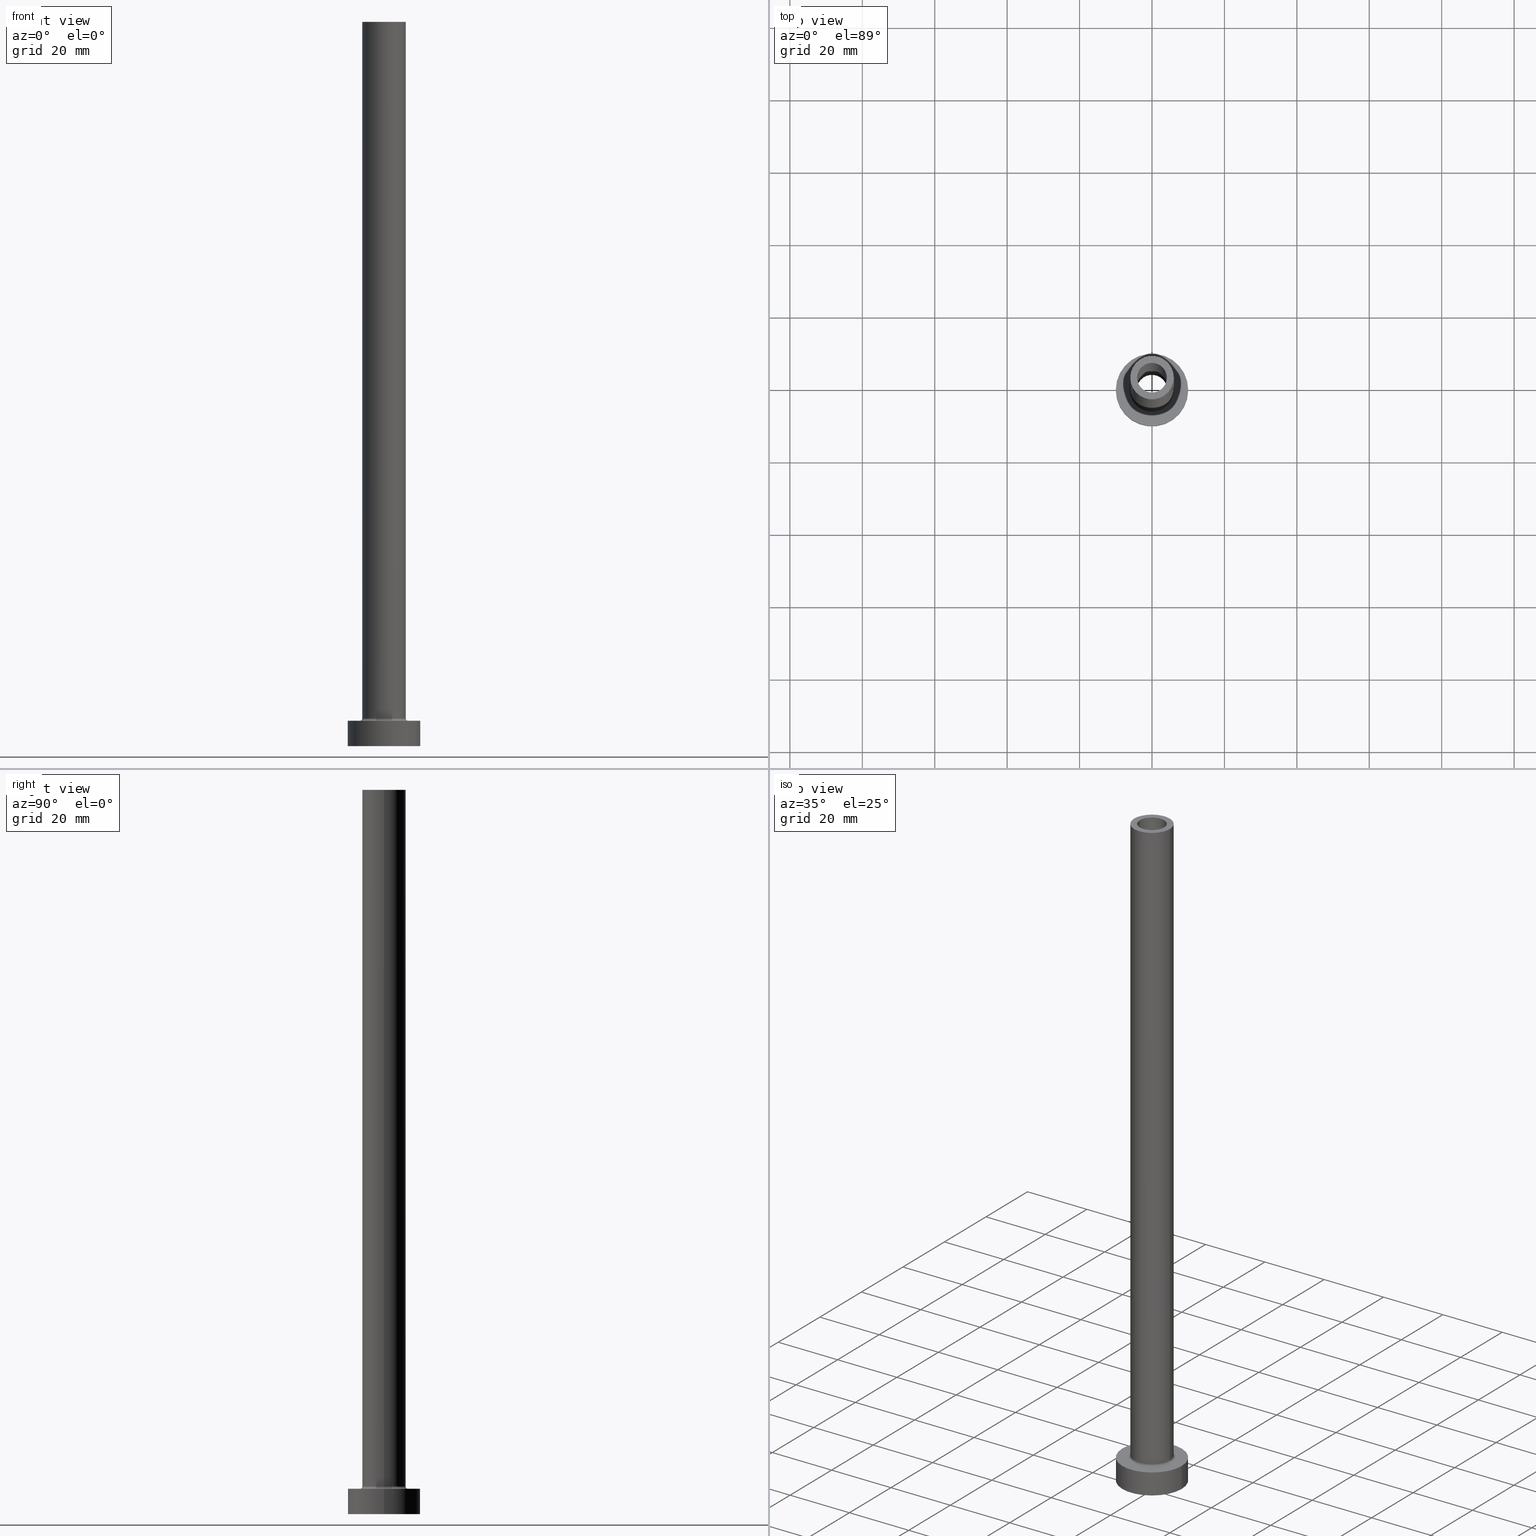
[diagram: canonical four-view strip — front | top / right | iso, engineering-drawing reading convention]
A machine part, canonical four-view strip (front | top / right | iso — engineering-drawing reading convention). The complete STEP part file that produces these views, byte-faithful:
ISO-10303-21;
HEADER;
FILE_DESCRIPTION (( 'STEP AP203' ),
    '1' );
FILE_NAME ('db76.STEP',
    '2023-02-13T07:45:26',
    ( '' ),
    ( '' ),
    'SwSTEP 2.0',
    'SolidWorks 2019',
    '' );
FILE_SCHEMA (( 'CONFIG_CONTROL_DESIGN' ));
ENDSEC;

DATA;
#1 = DIRECTION ( 'NONE',  ( -0.000000000000000000, -0.000000000000000000, -1.000000000000000000 ) ) ;
#2 = DIRECTION ( 'NONE',  ( 1.000000000000000000, 0.000000000000000000, 0.000000000000000000 ) ) ;
#3 = VERTEX_POINT ( 'NONE', #303 ) ;
#4 = CIRCLE ( 'NONE', #53, 10.00000000000000000 ) ;
#5 = CARTESIAN_POINT ( 'NONE',  ( 0.000000000000000000, 0.000000000000000000, 7.000000000000000000 ) ) ;
#6 = CC_DESIGN_PERSON_AND_ORGANIZATION_ASSIGNMENT ( #117, #230, ( #453 ) ) ;
#7 = ORIENTED_EDGE ( 'NONE', *, *, #271, .F. ) ;
#8 = DIRECTION ( 'NONE',  ( 0.000000000000000000, 0.000000000000000000, 1.000000000000000000 ) ) ;
#9 = PERSON_AND_ORGANIZATION ( #415, #237 ) ;
#10 = EDGE_LOOP ( 'NONE', ( #16, #228, #18, #420 ) ) ;
#11 = DIRECTION ( 'NONE',  ( 0.000000000000000000, 0.000000000000000000, 1.000000000000000000 ) ) ;
#12 = ORIENTED_EDGE ( 'NONE', *, *, #333, .F. ) ;
#13 = ADVANCED_BREP_SHAPE_REPRESENTATION ( 'db76', ( #59, #292 ), #231 ) ;
#14 = LOCAL_TIME ( 8, 45, 26.00000000000000000, #174 ) ;
#15 = VERTEX_POINT ( 'NONE', #106 ) ;
#16 = ORIENTED_EDGE ( 'NONE', *, *, #302, .F. ) ;
#17 = CALENDAR_DATE ( 2023, 13, 2 ) ;
#18 = ORIENTED_EDGE ( 'NONE', *, *, #45, .T. ) ;
#19 = EDGE_CURVE ( 'NONE', #15, #83, #216, .T. ) ;
#20 = DIRECTION ( 'NONE',  ( 1.000000000000000000, 0.000000000000000000, 0.000000000000000000 ) ) ;
#21 = AXIS2_PLACEMENT_3D ( 'NONE', #459, #389, #285 ) ;
#22 = DIRECTION ( 'NONE',  ( 1.000000000000000000, 0.000000000000000000, 0.000000000000000000 ) ) ;
#23 = CIRCLE ( 'NONE', #276, 4.250000000000000000 ) ;
#24 = CARTESIAN_POINT ( 'NONE',  ( 0.000000000000000000, 0.000000000000000000, 200.0000000000000000 ) ) ;
#25 = ORIENTED_EDGE ( 'NONE', *, *, #195, .T. ) ;
#26 = CARTESIAN_POINT ( 'NONE',  ( 6.700000000000001066, 0.000000000000000000, 7.700000000000012612 ) ) ;
#27 = CARTESIAN_POINT ( 'NONE',  ( 0.000000000000000000, 0.000000000000000000, 7.700000000000012612 ) ) ;
#28 = AXIS2_PLACEMENT_3D ( 'NONE', #5, #394, #149 ) ;
#29 = CARTESIAN_POINT ( 'NONE',  ( 0.000000000000000000, 0.000000000000000000, 0.000000000000000000 ) ) ;
#30 = APPROVAL_STATUS ( 'not_yet_approved' ) ;
#31 = DIRECTION ( 'NONE',  ( 0.000000000000000000, 0.000000000000000000, 1.000000000000000000 ) ) ;
#32 = DIRECTION ( 'NONE',  ( 0.000000000000000000, 0.000000000000000000, 1.000000000000000000 ) ) ;
#33 = AXIS2_PLACEMENT_3D ( 'NONE', #432, #8, #154 ) ;
#34 = FACE_OUTER_BOUND ( 'NONE', #252, .T. ) ;
#35 = DIRECTION ( 'NONE',  ( -0.000000000000000000, -0.000000000000000000, -1.000000000000000000 ) ) ;
#36 = DIRECTION ( 'NONE',  ( -1.000000000000000000, 0.000000000000000000, 0.000000000000000000 ) ) ;
#37 = AXIS2_PLACEMENT_3D ( 'NONE', #88, #376, #193 ) ;
#38 =( LENGTH_UNIT ( ) NAMED_UNIT ( * ) SI_UNIT ( .MILLI., .METRE. ) );
#39 = EDGE_CURVE ( 'NONE', #15, #114, #144, .T. ) ;
#40 = ORIENTED_EDGE ( 'NONE', *, *, #45, .F. ) ;
#41 = DIRECTION ( 'NONE',  ( -0.000000000000000000, -0.000000000000000000, -1.000000000000000000 ) ) ;
#42 = CARTESIAN_POINT ( 'NONE',  ( 0.000000000000000000, 0.000000000000000000, 0.000000000000000000 ) ) ;
#43 = DATE_AND_TIME ( #17, #148 ) ;
#44 = ORIENTED_EDGE ( 'NONE', *, *, #324, .F. ) ;
#45 = EDGE_CURVE ( 'NONE', #375, #48, #86, .T. ) ;
#46 = EDGE_CURVE ( 'NONE', #219, #400, #384, .T. ) ;
#47 = PERSON_AND_ORGANIZATION ( #415, #237 ) ;
#48 = VERTEX_POINT ( 'NONE', #191 ) ;
#49 = AXIS2_PLACEMENT_3D ( 'NONE', #89, #346, #20 ) ;
#50 = AXIS2_PLACEMENT_3D ( 'NONE', #27, #278, #279 ) ;
#51 = PERSON_AND_ORGANIZATION_ROLE ( 'design_supplier' ) ;
#52 = EDGE_CURVE ( 'NONE', #320, #199, #170, .T. ) ;
#53 = AXIS2_PLACEMENT_3D ( 'NONE', #42, #355, #443 ) ;
#54 = EDGE_LOOP ( 'NONE', ( #409, #370 ) ) ;
#55 = CARTESIAN_POINT ( 'NONE',  ( 4.250000000000000000, 5.204748896376250699E-16, 167.0208152801713197 ) ) ;
#56 = AXIS2_PLACEMENT_3D ( 'NONE', #425, #95, #204 ) ;
#57 = CC_DESIGN_APPROVAL ( #126, ( #453 ) ) ;
#58 = ADVANCED_FACE ( 'NONE', ( #447 ), #268, .T. ) ;
#59 = MANIFOLD_SOLID_BREP ( 'Odebrat vysunut�m4', #377 ) ;
#60 = CARTESIAN_POINT ( 'NONE',  ( 0.000000000000000000, 0.000000000000000000, 200.0000000000000000 ) ) ;
#61 = ADVANCED_FACE ( 'NONE', ( #269 ), #82, .F. ) ;
#62 = CARTESIAN_POINT ( 'NONE',  ( 0.000000000000000000, 0.000000000000000000, 7.000000000000000000 ) ) ;
#63 = ORIENTED_EDGE ( 'NONE', *, *, #234, .F. ) ;
#64 = DIRECTION ( 'NONE',  ( 0.000000000000000000, 0.000000000000000000, 1.000000000000000000 ) ) ;
#65 = VERTEX_POINT ( 'NONE', #410 ) ;
#66 = CC_DESIGN_APPROVAL ( #103, ( #411 ) ) ;
#67 = FACE_BOUND ( 'NONE', #440, .T. ) ;
#68 = ADVANCED_FACE ( 'NONE', ( #306, #238 ), #310, .T. ) ;
#69 = CARTESIAN_POINT ( 'NONE',  ( 0.000000000000000000, 0.000000000000000000, 167.0208152801713197 ) ) ;
#70 = DIRECTION ( 'NONE',  ( 1.000000000000000000, 0.000000000000000000, 0.000000000000000000 ) ) ;
#71 = DIRECTION ( 'NONE',  ( 0.000000000000000000, 0.000000000000000000, 1.000000000000000000 ) ) ;
#72 = ORIENTED_EDGE ( 'NONE', *, *, #46, .F. ) ;
#73 = ORIENTED_EDGE ( 'NONE', *, *, #127, .F. ) ;
#74 = AXIS2_PLACEMENT_3D ( 'NONE', #62, #32, #102 ) ;
#75 = FACE_OUTER_BOUND ( 'NONE', #122, .T. ) ;
#76 = EDGE_CURVE ( 'NONE', #400, #187, #307, .T. ) ;
#77 = COORDINATED_UNIVERSAL_TIME_OFFSET ( 1, 0, .AHEAD. ) ;
#78 = ORIENTED_EDGE ( 'NONE', *, *, #169, .T. ) ;
#79 = FACE_OUTER_BOUND ( 'NONE', #431, .T. ) ;
#80 = EDGE_LOOP ( 'NONE', ( #215, #275 ) ) ;
#81 = APPROVAL_STATUS ( 'not_yet_approved' ) ;
#82 = CYLINDRICAL_SURFACE ( 'NONE', #90, 4.099999999999999645 ) ;
#83 = VERTEX_POINT ( 'NONE', #413 ) ;
#84 = EDGE_CURVE ( 'NONE', #3, #406, #137, .T. ) ;
#85 = APPROVAL_PERSON_ORGANIZATION ( #372, #202, #251 ) ;
#86 = LINE ( 'NONE', #344, #371 ) ;
#87 = ORIENTED_EDGE ( 'NONE', *, *, #414, .F. ) ;
#88 = CARTESIAN_POINT ( 'NONE',  ( 0.000000000000000000, 0.000000000000000000, 200.0000000000000000 ) ) ;
#89 = CARTESIAN_POINT ( 'NONE',  ( 0.000000000000000000, 0.000000000000000000, 200.0000000000000000 ) ) ;
#90 = AXIS2_PLACEMENT_3D ( 'NONE', #308, #236, #162 ) ;
#91 = CARTESIAN_POINT ( 'NONE',  ( -10.00000000000000000, 0.000000000000000000, 0.000000000000000000 ) ) ;
#92 = LOCAL_TIME ( 8, 45, 26.00000000000000000, #403 ) ;
#93 = EDGE_CURVE ( 'NONE', #341, #375, #353, .T. ) ;
#94 = ORIENTED_EDGE ( 'NONE', *, *, #19, .F. ) ;
#95 = DIRECTION ( 'NONE',  ( 0.000000000000000000, 0.000000000000000000, 1.000000000000000000 ) ) ;
#96 = CALENDAR_DATE ( 2023, 13, 2 ) ;
#97 = CARTESIAN_POINT ( 'NONE',  ( -4.099999999999999645, 0.000000000000000000, 200.0000000000000000 ) ) ;
#98 = EDGE_CURVE ( 'NONE', #151, #326, #416, .T. ) ;
#99 = FACE_OUTER_BOUND ( 'NONE', #305, .T. ) ;
#100 = AXIS2_PLACEMENT_3D ( 'NONE', #29, #139, #423 ) ;
#101 = AXIS2_PLACEMENT_3D ( 'NONE', #217, #250, #142 ) ;
#102 = DIRECTION ( 'NONE',  ( 1.000000000000000000, 0.000000000000000000, -0.000000000000000000 ) ) ;
#103 = APPROVAL ( #30, 'NEUR�EN�' ) ;
#104 = ORIENTED_EDGE ( 'NONE', *, *, #271, .T. ) ;
#105 = CYLINDRICAL_SURFACE ( 'NONE', #189, 4.099999999999999645 ) ;
#106 = CARTESIAN_POINT ( 'NONE',  ( -10.00000000000000000, 0.000000000000000000, 7.000000000000000000 ) ) ;
#107 = AXIS2_PLACEMENT_3D ( 'NONE', #378, #132, #417 ) ;
#108 = AXIS2_PLACEMENT_3D ( 'NONE', #351, #133, #134 ) ;
#109 = CARTESIAN_POINT ( 'NONE',  ( 6.000000000000000888, 7.347880794884120722E-16, 200.0000000000000000 ) ) ;
#110 = APPROVAL_DATE_TIME ( #214, #126 ) ;
#111 = CARTESIAN_POINT ( 'NONE',  ( -10.00000000000000000, 0.000000000000000000, 7.000000000000000000 ) ) ;
#112 = DIRECTION ( 'NONE',  ( 1.000000000000000000, 0.000000000000000000, 0.000000000000000000 ) ) ;
#113 = CARTESIAN_POINT ( 'NONE',  ( 0.000000000000000000, 0.000000000000000000, 0.000000000000000000 ) ) ;
#114 = VERTEX_POINT ( 'NONE', #91 ) ;
#115 = EDGE_CURVE ( 'NONE', #48, #320, #452, .T. ) ;
#116 = DIRECTION ( 'NONE',  ( 0.000000000000000000, 0.000000000000000000, -1.000000000000000000 ) ) ;
#117 = PERSON_AND_ORGANIZATION ( #415, #237 ) ;
#118 = AXIS2_PLACEMENT_3D ( 'NONE', #179, #397, #332 ) ;
#119 = CARTESIAN_POINT ( 'NONE',  ( 10.00000000000000000, 1.224646799147353256E-15, 7.000000000000000000 ) ) ;
#120 = PRODUCT_DEFINITION ( 'NEZN�M�', '', #453, #274 ) ;
#121 = ORIENTED_EDGE ( 'NONE', *, *, #52, .F. ) ;
#122 = EDGE_LOOP ( 'NONE', ( #260, #291, #87, #342 ) ) ;
#123 = PERSON_AND_ORGANIZATION_ROLE ( 'design_owner' ) ;
#124 = DIRECTION ( 'NONE',  ( 0.000000000000000000, -1.000000000000000000, 0.000000000000000000 ) ) ;
#125 = ORIENTED_EDGE ( 'NONE', *, *, #266, .F. ) ;
#126 = APPROVAL ( #81, 'NEUR�EN�' ) ;
#127 = EDGE_CURVE ( 'NONE', #326, #3, #454, .T. ) ;
#128 = TOROIDAL_SURFACE ( 'NONE', #210, 6.700000000000001066, 0.6999999999999999556 ) ;
#129 = DIRECTION ( 'NONE',  ( -0.000000000000000000, -0.000000000000000000, -1.000000000000000000 ) ) ;
#130 = DIRECTION ( 'NONE',  ( -0.000000000000000000, -0.000000000000000000, -1.000000000000000000 ) ) ;
#131 = ADVANCED_FACE ( 'NONE', ( #277, #176 ), #352, .F. ) ;
#132 = DIRECTION ( 'NONE',  ( 0.000000000000000000, 0.000000000000000000, 1.000000000000000000 ) ) ;
#133 = DIRECTION ( 'NONE',  ( 0.000000000000000000, 0.000000000000000000, -1.000000000000000000 ) ) ;
#134 = DIRECTION ( 'NONE',  ( -1.000000000000000000, 0.000000000000000000, 0.000000000000000000 ) ) ;
#135 = APPROVAL_ROLE ( '' ) ;
#136 = DIRECTION ( 'NONE',  ( 1.000000000000000000, 0.000000000000000000, 0.000000000000000000 ) ) ;
#137 = CIRCLE ( 'NONE', #257, 4.250000000000000000 ) ;
#138 = DIRECTION ( 'NONE',  ( -1.000000000000000000, 1.224646799147353454E-16, 0.000000000000000000 ) ) ;
#139 = DIRECTION ( 'NONE',  ( 0.000000000000000000, 0.000000000000000000, 1.000000000000000000 ) ) ;
#140 = ORIENTED_EDGE ( 'NONE', *, *, #52, .T. ) ;
#141 = EDGE_CURVE ( 'NONE', #375, #341, #145, .T. ) ;
#142 = DIRECTION ( 'NONE',  ( -1.000000000000000000, 0.000000000000000000, 0.000000000000000000 ) ) ;
#143 = CARTESIAN_POINT ( 'NONE',  ( 6.000000000000000888, 7.347880794884120722E-16, 7.700000000000012612 ) ) ;
#144 = LINE ( 'NONE', #111, #456 ) ;
#145 = CIRCLE ( 'NONE', #56, 6.000000000000000888 ) ;
#146 = AXIS2_PLACEMENT_3D ( 'NONE', #421, #319, #428 ) ;
#147 = VERTEX_POINT ( 'NONE', #208 ) ;
#148 = LOCAL_TIME ( 8, 45, 26.00000000000000000, #150 ) ;
#149 = DIRECTION ( 'NONE',  ( 1.000000000000000000, 0.000000000000000000, 0.000000000000000000 ) ) ;
#150 = COORDINATED_UNIVERSAL_TIME_OFFSET ( 1, 0, .AHEAD. ) ;
#151 = VERTEX_POINT ( 'NONE', #387 ) ;
#152 = ADVANCED_FACE ( 'NONE', ( #206 ), #328, .F. ) ;
#153 = ORIENTED_EDGE ( 'NONE', *, *, #195, .F. ) ;
#154 = DIRECTION ( 'NONE',  ( 1.000000000000000000, 0.000000000000000000, 0.000000000000000000 ) ) ;
#155 = COORDINATED_UNIVERSAL_TIME_OFFSET ( 1, 0, .AHEAD. ) ;
#156 = ORIENTED_EDGE ( 'NONE', *, *, #93, .F. ) ;
#157 = CARTESIAN_POINT ( 'NONE',  ( -4.250000000000000000, 0.000000000000000000, 167.0208152801713197 ) ) ;
#158 = AXIS2_PLACEMENT_3D ( 'NONE', #24, #167, #273 ) ;
#159 = ORIENTED_EDGE ( 'NONE', *, *, #127, .T. ) ;
#160 = APPROVAL_PERSON_ORGANIZATION ( #9, #126, #363 ) ;
#161 = EDGE_LOOP ( 'NONE', ( #72, #153 ) ) ;
#162 = DIRECTION ( 'NONE',  ( -1.000000000000000000, 0.000000000000000000, 0.000000000000000000 ) ) ;
#163 = EDGE_LOOP ( 'NONE', ( #12, #94, #188, #168 ) ) ;
#164 = DIRECTION ( 'NONE',  ( -1.000000000000000000, 0.000000000000000000, 0.000000000000000000 ) ) ;
#165 = CIRCLE ( 'NONE', #50, 6.000000000000000888 ) ;
#166 = CARTESIAN_POINT ( 'NONE',  ( 0.000000000000000000, 0.000000000000000000, 7.000000000000000000 ) ) ;
#167 = DIRECTION ( 'NONE',  ( 0.000000000000000000, 0.000000000000000000, 1.000000000000000000 ) ) ;
#168 = ORIENTED_EDGE ( 'NONE', *, *, #317, .T. ) ;
#169 = EDGE_CURVE ( 'NONE', #326, #151, #361, .T. ) ;
#170 = CIRCLE ( 'NONE', #288, 0.7000000000000000666 ) ;
#171 = DIRECTION ( 'NONE',  ( -0.000000000000000000, -0.000000000000000000, -1.000000000000000000 ) ) ;
#172 = CIRCLE ( 'NONE', #391, 4.099999999999999645 ) ;
#173 = DIRECTION ( 'NONE',  ( 0.000000000000000000, 0.000000000000000000, 1.000000000000000000 ) ) ;
#174 = COORDINATED_UNIVERSAL_TIME_OFFSET ( 1, 0, .AHEAD. ) ;
#175 = DIRECTION ( 'NONE',  ( 1.000000000000000000, 0.000000000000000000, 0.000000000000000000 ) ) ;
#176 = FACE_OUTER_BOUND ( 'NONE', #366, .T. ) ;
#177 = EDGE_LOOP ( 'NONE', ( #185, #325 ) ) ;
#178 = CARTESIAN_POINT ( 'NONE',  ( 6.000000000000000888, 7.347880794884120722E-16, 200.0000000000000000 ) ) ;
#179 = CARTESIAN_POINT ( 'NONE',  ( 0.000000000000000000, 0.000000000000000000, 7.000000000000000000 ) ) ;
#180 = DIRECTION ( 'NONE',  ( 0.000000000000000000, 0.000000000000000000, 1.000000000000000000 ) ) ;
#181 = LINE ( 'NONE', #178, #345 ) ;
#182 =( NAMED_UNIT ( * ) SI_UNIT ( $, .STERADIAN. ) SOLID_ANGLE_UNIT ( ) );
#183 = CYLINDRICAL_SURFACE ( 'NONE', #426, 6.000000000000000888 ) ;
#184 = DATE_TIME_ROLE ( 'creation_date' ) ;
#185 = ORIENTED_EDGE ( 'NONE', *, *, #383, .T. ) ;
#186 = CARTESIAN_POINT ( 'NONE',  ( 0.000000000000000000, 0.000000000000000000, 0.000000000000000000 ) ) ;
#187 = VERTEX_POINT ( 'NONE', #350 ) ;
#188 = ORIENTED_EDGE ( 'NONE', *, *, #39, .T. ) ;
#189 = AXIS2_PLACEMENT_3D ( 'NONE', #247, #212, #399 ) ;
#190 = SECURITY_CLASSIFICATION_LEVEL ( 'unclassified' ) ;
#191 = CARTESIAN_POINT ( 'NONE',  ( -6.000000000000000888, 0.000000000000000000, 7.700000000000012612 ) ) ;
#192 = ORIENTED_EDGE ( 'NONE', *, *, #364, .T. ) ;
#193 = DIRECTION ( 'NONE',  ( 1.000000000000000000, 0.000000000000000000, -0.000000000000000000 ) ) ;
#194 = PRODUCT_DEFINITION_SHAPE ( 'NONE', 'NONE',  #120 ) ;
#195 = EDGE_CURVE ( 'NONE', #400, #219, #280, .T. ) ;
#196 = DIRECTION ( 'NONE',  ( -0.000000000000000000, -0.000000000000000000, -1.000000000000000000 ) ) ;
#197 = CIRCLE ( 'NONE', #354, 6.700000000000001066 ) ;
#198 = UNCERTAINTY_MEASURE_WITH_UNIT (LENGTH_MEASURE( 1.000000000000000082E-05 ), #38, 'distance_accuracy_value', 'NONE');
#199 = VERTEX_POINT ( 'NONE', #315 ) ;
#200 = ORIENTED_EDGE ( 'NONE', *, *, #333, .T. ) ;
#201 = CARTESIAN_POINT ( 'NONE',  ( -4.099999999999999645, 0.000000000000000000, 155.0000000000000284 ) ) ;
#202 = APPROVAL ( #407, 'NEUR�EN�' ) ;
#203 = LOCAL_TIME ( 8, 45, 26.00000000000000000, #77 ) ;
#204 = DIRECTION ( 'NONE',  ( 1.000000000000000000, 0.000000000000000000, 0.000000000000000000 ) ) ;
#205 = CIRCLE ( 'NONE', #379, 0.7000000000000000666 ) ;
#206 = FACE_OUTER_BOUND ( 'NONE', #404, .T. ) ;
#207 = APPLICATION_CONTEXT ( 'configuration controlled 3d designs of mechanical parts and assemblies' ) ;
#208 = CARTESIAN_POINT ( 'NONE',  ( -6.700000000000001066, 8.205133554287267548E-16, 7.000000000000006217 ) ) ;
#209 = PLANE ( 'NONE',  #74 ) ;
#210 = AXIS2_PLACEMENT_3D ( 'NONE', #243, #31, #175 ) ;
#211 = DATE_AND_TIME ( #223, #203 ) ;
#212 = DIRECTION ( 'NONE',  ( 0.000000000000000000, 0.000000000000000000, -1.000000000000000000 ) ) ;
#213 = LINE ( 'NONE', #119, #313 ) ;
#214 = DATE_AND_TIME ( #297, #419 ) ;
#215 = ORIENTED_EDGE ( 'NONE', *, *, #141, .T. ) ;
#216 = CIRCLE ( 'NONE', #401, 10.00000000000000000 ) ;
#217 = CARTESIAN_POINT ( 'NONE',  ( 0.000000000000000000, 0.000000000000000000, 200.0000000000000000 ) ) ;
#218 = APPLICATION_PROTOCOL_DEFINITION ( 'international standard', 'config_control_design', 1994, #207 ) ;
#219 = VERTEX_POINT ( 'NONE', #97 ) ;
#220 = VECTOR ( 'NONE', #116, 1000.000000000000000 ) ;
#221 = ORIENTED_EDGE ( 'NONE', *, *, #244, .T. ) ;
#222 = CARTESIAN_POINT ( 'NONE',  ( -6.000000000000000888, 0.000000000000000000, 200.0000000000000000 ) ) ;
#223 = CALENDAR_DATE ( 2023, 13, 2 ) ;
#224 = CC_DESIGN_DATE_AND_TIME_ASSIGNMENT ( #211, #388, ( #411 ) ) ;
#225 = ORIENTED_EDGE ( 'NONE', *, *, #324, .T. ) ;
#226 = DIRECTION ( 'NONE',  ( 1.000000000000000000, 0.000000000000000000, -0.000000000000000000 ) ) ;
#227 =( NAMED_UNIT ( * ) PLANE_ANGLE_UNIT ( ) SI_UNIT ( $, .RADIAN. ) );
#228 = ORIENTED_EDGE ( 'NONE', *, *, #141, .F. ) ;
#229 = ADVANCED_FACE ( 'NONE', ( #430, #34 ), #209, .T. ) ;
#230 = PERSON_AND_ORGANIZATION_ROLE ( 'creator' ) ;
#231 =( GEOMETRIC_REPRESENTATION_CONTEXT ( 3 ) GLOBAL_UNCERTAINTY_ASSIGNED_CONTEXT ( ( #198 ) ) GLOBAL_UNIT_ASSIGNED_CONTEXT ( ( #38, #227, #182 ) ) REPRESENTATION_CONTEXT ( 'NONE', 'WORKASPACE' ) );
#232 = DIRECTION ( 'NONE',  ( -0.000000000000000000, -0.000000000000000000, -1.000000000000000000 ) ) ;
#233 = EDGE_LOOP ( 'NONE', ( #156, #412, #104, #40 ) ) ;
#234 = EDGE_CURVE ( 'NONE', #147, #199, #362, .T. ) ;
#235 = CARTESIAN_POINT ( 'NONE',  ( 0.000000000000000000, 0.000000000000000000, 0.000000000000000000 ) ) ;
#236 = DIRECTION ( 'NONE',  ( 0.000000000000000000, 0.000000000000000000, -1.000000000000000000 ) ) ;
#237 = ORGANIZATION ( 'NEUR�EN�', 'NEUR�EN�', '' ) ;
#238 = FACE_OUTER_BOUND ( 'NONE', #80, .T. ) ;
#239 = CARTESIAN_POINT ( 'NONE',  ( 0.000000000000000000, 0.000000000000000000, 7.000000000000000000 ) ) ;
#240 = FACE_OUTER_BOUND ( 'NONE', #270, .T. ) ;
#241 = AXIS2_PLACEMENT_3D ( 'NONE', #457, #173, #245 ) ;
#242 = DATE_AND_TIME ( #96, #14 ) ;
#243 = CARTESIAN_POINT ( 'NONE',  ( 0.000000000000000000, 0.000000000000000000, 7.700000000000012612 ) ) ;
#244 = EDGE_CURVE ( 'NONE', #219, #253, #382, .T. ) ;
#245 = DIRECTION ( 'NONE',  ( 1.000000000000000000, 0.000000000000000000, 0.000000000000000000 ) ) ;
#246 = DIRECTION ( 'NONE',  ( 0.000000000000000000, 0.000000000000000000, -1.000000000000000000 ) ) ;
#247 = CARTESIAN_POINT ( 'NONE',  ( 0.000000000000000000, 0.000000000000000000, 200.0000000000000000 ) ) ;
#248 = ORIENTED_EDGE ( 'NONE', *, *, #39, .F. ) ;
#249 = AXIS2_PLACEMENT_3D ( 'NONE', #239, #171, #136 ) ;
#250 = DIRECTION ( 'NONE',  ( -0.000000000000000000, -0.000000000000000000, -1.000000000000000000 ) ) ;
#251 = APPROVAL_ROLE ( '' ) ;
#252 = EDGE_LOOP ( 'NONE', ( #396, #358 ) ) ;
#253 = VERTEX_POINT ( 'NONE', #201 ) ;
#254 = ADVANCED_FACE ( 'NONE', ( #390 ), #312, .F. ) ;
#255 = FACE_OUTER_BOUND ( 'NONE', #331, .T. ) ;
#256 = ORIENTED_EDGE ( 'NONE', *, *, #364, .F. ) ;
#257 = AXIS2_PLACEMENT_3D ( 'NONE', #235, #196, #22 ) ;
#258 = CARTESIAN_POINT ( 'NONE',  ( 0.000000000000000000, 0.000000000000000000, 155.0000000000000284 ) ) ;
#259 = PERSON_AND_ORGANIZATION ( #415, #237 ) ;
#260 = ORIENTED_EDGE ( 'NONE', *, *, #46, .T. ) ;
#261 = AXIS2_PLACEMENT_3D ( 'NONE', #258, #71, #226 ) ;
#262 = ORIENTED_EDGE ( 'NONE', *, *, #380, .F. ) ;
#263 = CARTESIAN_POINT ( 'NONE',  ( -4.250000000000000000, 0.000000000000000000, 0.000000000000000000 ) ) ;
#264 = PERSON_AND_ORGANIZATION_ROLE ( 'creator' ) ;
#265 = ORIENTED_EDGE ( 'NONE', *, *, #98, .F. ) ;
#266 = EDGE_CURVE ( 'NONE', #48, #147, #205, .T. ) ;
#267 = APPLICATION_PROTOCOL_DEFINITION ( 'international standard', 'config_control_design', 1994, #373 ) ;
#268 = CYLINDRICAL_SURFACE ( 'NONE', #300, 10.00000000000000000 ) ;
#269 = FACE_OUTER_BOUND ( 'NONE', #339, .T. ) ;
#270 = EDGE_LOOP ( 'NONE', ( #445, #286, #337, #121 ) ) ;
#271 = EDGE_CURVE ( 'NONE', #320, #48, #165, .T. ) ;
#272 = CC_DESIGN_APPROVAL ( #202, ( #120 ) ) ;
#273 = DIRECTION ( 'NONE',  ( 1.000000000000000000, 0.000000000000000000, 0.000000000000000000 ) ) ;
#274 = DESIGN_CONTEXT ( 'detailed design', #373, 'design' ) ;
#275 = ORIENTED_EDGE ( 'NONE', *, *, #93, .T. ) ;
#276 = AXIS2_PLACEMENT_3D ( 'NONE', #186, #41, #405 ) ;
#277 = FACE_BOUND ( 'NONE', #54, .T. ) ;
#278 = DIRECTION ( 'NONE',  ( 0.000000000000000000, 0.000000000000000000, 1.000000000000000000 ) ) ;
#279 = DIRECTION ( 'NONE',  ( 1.000000000000000000, 0.000000000000000000, 0.000000000000000000 ) ) ;
#280 = CIRCLE ( 'NONE', #449, 4.099999999999999645 ) ;
#281 = APPROVAL_DATE_TIME ( #242, #103 ) ;
#282 = CIRCLE ( 'NONE', #28, 10.00000000000000000 ) ;
#283 = ADVANCED_FACE ( 'NONE', ( #240 ), #128, .F. ) ;
#284 = CC_DESIGN_PERSON_AND_ORGANIZATION_ASSIGNMENT ( #290, #123, ( #424 ) ) ;
#285 = DIRECTION ( 'NONE',  ( 1.000000000000000000, 0.000000000000000000, 0.000000000000000000 ) ) ;
#286 = ORIENTED_EDGE ( 'NONE', *, *, #266, .T. ) ;
#287 = CYLINDRICAL_SURFACE ( 'NONE', #118, 10.00000000000000000 ) ;
#288 = AXIS2_PLACEMENT_3D ( 'NONE', #26, #124, #408 ) ;
#289 = DIRECTION ( 'NONE',  ( 0.000000000000000000, 0.000000000000000000, -1.000000000000000000 ) ) ;
#290 = PERSON_AND_ORGANIZATION ( #415, #237 ) ;
#291 = ORIENTED_EDGE ( 'NONE', *, *, #76, .T. ) ;
#292 = AXIS2_PLACEMENT_3D ( 'NONE', #113, #336, #70 ) ;
#293 = CARTESIAN_POINT ( 'NONE',  ( 4.099999999999999645, 5.021051876504146399E-16, 200.0000000000000000 ) ) ;
#294 = PERSON_AND_ORGANIZATION ( #415, #237 ) ;
#295 = ORIENTED_EDGE ( 'NONE', *, *, #169, .F. ) ;
#296 = CARTESIAN_POINT ( 'NONE',  ( 0.000000000000000000, 0.000000000000000000, 200.0000000000000000 ) ) ;
#297 = CALENDAR_DATE ( 2023, 13, 2 ) ;
#298 = ORIENTED_EDGE ( 'NONE', *, *, #76, .F. ) ;
#299 = ADVANCED_FACE ( 'NONE', ( #99 ), #318, .F. ) ;
#300 = AXIS2_PLACEMENT_3D ( 'NONE', #166, #232, #164 ) ;
#301 = CARTESIAN_POINT ( 'NONE',  ( 0.000000000000000000, 0.000000000000000000, 155.0000000000000284 ) ) ;
#302 = EDGE_CURVE ( 'NONE', #341, #320, #181, .T. ) ;
#303 = CARTESIAN_POINT ( 'NONE',  ( 4.250000000000000000, 5.204748896376250699E-16, 0.000000000000000000 ) ) ;
#304 = CIRCLE ( 'NONE', #374, 10.00000000000000000 ) ;
#305 = EDGE_LOOP ( 'NONE', ( #334, #159, #437, #256 ) ) ;
#306 = FACE_BOUND ( 'NONE', #161, .T. ) ;
#307 = LINE ( 'NONE', #450, #343 ) ;
#308 = CARTESIAN_POINT ( 'NONE',  ( 0.000000000000000000, 0.000000000000000000, 200.0000000000000000 ) ) ;
#309 = CC_DESIGN_PERSON_AND_ORGANIZATION_ASSIGNMENT ( #47, #51, ( #453 ) ) ;
#310 = PLANE ( 'NONE',  #37 ) ;
#311 = EDGE_CURVE ( 'NONE', #406, #3, #23, .T. ) ;
#312 = CYLINDRICAL_SURFACE ( 'NONE', #108, 4.250000000000000000 ) ;
#313 = VECTOR ( 'NONE', #35, 1000.000000000000000 ) ;
#314 = DIRECTION ( 'NONE',  ( 1.000000000000000000, 0.000000000000000000, 0.000000000000000000 ) ) ;
#315 = CARTESIAN_POINT ( 'NONE',  ( 6.700000000000001066, 0.000000000000000000, 7.000000000000006217 ) ) ;
#316 = ADVANCED_FACE ( 'NONE', ( #67, #79 ), #365, .F. ) ;
#317 = EDGE_CURVE ( 'NONE', #114, #65, #4, .T. ) ;
#318 = CYLINDRICAL_SURFACE ( 'NONE', #349, 4.250000000000000000 ) ;
#319 = DIRECTION ( 'NONE',  ( 0.000000000000000000, 0.000000000000000000, 1.000000000000000000 ) ) ;
#320 = VERTEX_POINT ( 'NONE', #143 ) ;
#321 = PRODUCT_RELATED_PRODUCT_CATEGORY ( 'detail', '', ( #424 ) ) ;
#322 = LINE ( 'NONE', #157, #220 ) ;
#323 = DIRECTION ( 'NONE',  ( 1.000000000000000000, 0.000000000000000000, 0.000000000000000000 ) ) ;
#324 = EDGE_CURVE ( 'NONE', #65, #114, #304, .T. ) ;
#325 = ORIENTED_EDGE ( 'NONE', *, *, #234, .T. ) ;
#326 = VERTEX_POINT ( 'NONE', #335 ) ;
#327 = FACE_OUTER_BOUND ( 'NONE', #233, .T. ) ;
#328 = TOROIDAL_SURFACE ( 'NONE', #241, 6.700000000000001066, 0.6999999999999999556 ) ;
#329 = APPROVAL_PERSON_ORGANIZATION ( #422, #103, #135 ) ;
#330 = MECHANICAL_CONTEXT ( 'NONE', #207, 'mechanical' ) ;
#331 = EDGE_LOOP ( 'NONE', ( #262, #200, #225, #248 ) ) ;
#332 = DIRECTION ( 'NONE',  ( -1.000000000000000000, 0.000000000000000000, 0.000000000000000000 ) ) ;
#333 = EDGE_CURVE ( 'NONE', #83, #65, #213, .T. ) ;
#334 = ORIENTED_EDGE ( 'NONE', *, *, #98, .T. ) ;
#335 = CARTESIAN_POINT ( 'NONE',  ( 4.250000000000000000, 5.204748896376250699E-16, 155.0000000000000284 ) ) ;
#336 = DIRECTION ( 'NONE',  ( 0.000000000000000000, 0.000000000000000000, 1.000000000000000000 ) ) ;
#337 = ORIENTED_EDGE ( 'NONE', *, *, #383, .F. ) ;
#338 = CC_DESIGN_DATE_AND_TIME_ASSIGNMENT ( #435, #184, ( #120 ) ) ;
#339 = EDGE_LOOP ( 'NONE', ( #298, #25, #221, #460 ) ) ;
#340 = VECTOR ( 'NONE', #246, 1000.000000000000000 ) ;
#341 = VERTEX_POINT ( 'NONE', #109 ) ;
#342 = ORIENTED_EDGE ( 'NONE', *, *, #244, .F. ) ;
#343 = VECTOR ( 'NONE', #448, 1000.000000000000000 ) ;
#344 = CARTESIAN_POINT ( 'NONE',  ( -6.000000000000000888, 0.000000000000000000, 200.0000000000000000 ) ) ;
#345 = VECTOR ( 'NONE', #1, 1000.000000000000000 ) ;
#346 = DIRECTION ( 'NONE',  ( 0.000000000000000000, 0.000000000000000000, 1.000000000000000000 ) ) ;
#347 = DIRECTION ( 'NONE',  ( 1.224646799147353207E-16, 1.000000000000000000, -0.000000000000000000 ) ) ;
#348 = VECTOR ( 'NONE', #451, 1000.000000000000000 ) ;
#349 = AXIS2_PLACEMENT_3D ( 'NONE', #69, #289, #434 ) ;
#350 = CARTESIAN_POINT ( 'NONE',  ( 4.099999999999999645, 5.021051876504146399E-16, 155.0000000000000284 ) ) ;
#351 = CARTESIAN_POINT ( 'NONE',  ( 0.000000000000000000, 0.000000000000000000, 167.0208152801713197 ) ) ;
#352 = PLANE ( 'NONE',  #100 ) ;
#353 = CIRCLE ( 'NONE', #158, 6.000000000000000888 ) ;
#354 = AXIS2_PLACEMENT_3D ( 'NONE', #402, #360, #441 ) ;
#355 = DIRECTION ( 'NONE',  ( 0.000000000000000000, 0.000000000000000000, 1.000000000000000000 ) ) ;
#356 = FACE_OUTER_BOUND ( 'NONE', #10, .T. ) ;
#357 = PERSON_AND_ORGANIZATION_ROLE ( 'classification_officer' ) ;
#358 = ORIENTED_EDGE ( 'NONE', *, *, #380, .T. ) ;
#359 = EDGE_LOOP ( 'NONE', ( #73, #78, #192, #439 ) ) ;
#360 = DIRECTION ( 'NONE',  ( -0.000000000000000000, -0.000000000000000000, -1.000000000000000000 ) ) ;
#361 = CIRCLE ( 'NONE', #21, 4.250000000000000000 ) ;
#362 = CIRCLE ( 'NONE', #249, 6.700000000000001066 ) ;
#363 = APPROVAL_ROLE ( '' ) ;
#364 = EDGE_CURVE ( 'NONE', #151, #406, #322, .T. ) ;
#365 = PLANE ( 'NONE',  #261 ) ;
#366 = EDGE_LOOP ( 'NONE', ( #444, #44 ) ) ;
#367 = ADVANCED_FACE ( 'NONE', ( #327 ), #368, .T. ) ;
#368 = CYLINDRICAL_SURFACE ( 'NONE', #101, 6.000000000000000888 ) ;
#369 = ORIENTED_EDGE ( 'NONE', *, *, #414, .T. ) ;
#370 = ORIENTED_EDGE ( 'NONE', *, *, #84, .F. ) ;
#371 = VECTOR ( 'NONE', #130, 1000.000000000000000 ) ;
#372 = PERSON_AND_ORGANIZATION ( #415, #237 ) ;
#373 = APPLICATION_CONTEXT ( 'configuration controlled 3d designs of mechanical parts and assemblies' ) ;
#374 = AXIS2_PLACEMENT_3D ( 'NONE', #461, #11, #323 ) ;
#375 = VERTEX_POINT ( 'NONE', #222 ) ;
#376 = DIRECTION ( 'NONE',  ( 0.000000000000000000, 0.000000000000000000, 1.000000000000000000 ) ) ;
#377 = CLOSED_SHELL ( 'NONE', ( #446, #299, #283, #367, #429, #58, #229, #131, #398, #68, #152, #254, #316, #61 ) ) ;
#378 = CARTESIAN_POINT ( 'NONE',  ( 0.000000000000000000, 0.000000000000000000, 155.0000000000000284 ) ) ;
#379 = AXIS2_PLACEMENT_3D ( 'NONE', #385, #347, #138 ) ;
#380 = EDGE_CURVE ( 'NONE', #83, #15, #282, .T. ) ;
#381 = ORIENTED_EDGE ( 'NONE', *, *, #436, .T. ) ;
#382 = LINE ( 'NONE', #455, #340 ) ;
#383 = EDGE_CURVE ( 'NONE', #199, #147, #197, .T. ) ;
#384 = CIRCLE ( 'NONE', #49, 4.099999999999999645 ) ;
#385 = CARTESIAN_POINT ( 'NONE',  ( -6.700000000000001066, 8.205133554287267548E-16, 7.700000000000012612 ) ) ;
#386 = CC_DESIGN_SECURITY_CLASSIFICATION ( #411, ( #453 ) ) ;
#387 = CARTESIAN_POINT ( 'NONE',  ( -4.250000000000000000, 0.000000000000000000, 155.0000000000000284 ) ) ;
#388 = DATE_TIME_ROLE ( 'classification_date' ) ;
#389 = DIRECTION ( 'NONE',  ( 0.000000000000000000, 0.000000000000000000, 1.000000000000000000 ) ) ;
#390 = FACE_OUTER_BOUND ( 'NONE', #359, .T. ) ;
#391 = AXIS2_PLACEMENT_3D ( 'NONE', #301, #438, #112 ) ;
#392 = DIRECTION ( 'NONE',  ( -0.000000000000000000, -0.000000000000000000, -1.000000000000000000 ) ) ;
#393 = CARTESIAN_POINT ( 'NONE',  ( 0.000000000000000000, 0.000000000000000000, 7.000000000000000000 ) ) ;
#394 = DIRECTION ( 'NONE',  ( 0.000000000000000000, 0.000000000000000000, 1.000000000000000000 ) ) ;
#395 = CALENDAR_DATE ( 2023, 13, 2 ) ;
#396 = ORIENTED_EDGE ( 'NONE', *, *, #19, .T. ) ;
#397 = DIRECTION ( 'NONE',  ( -0.000000000000000000, -0.000000000000000000, -1.000000000000000000 ) ) ;
#398 = ADVANCED_FACE ( 'NONE', ( #356 ), #183, .T. ) ;
#399 = DIRECTION ( 'NONE',  ( -1.000000000000000000, 0.000000000000000000, 0.000000000000000000 ) ) ;
#400 = VERTEX_POINT ( 'NONE', #293 ) ;
#401 = AXIS2_PLACEMENT_3D ( 'NONE', #393, #180, #2 ) ;
#402 = CARTESIAN_POINT ( 'NONE',  ( 0.000000000000000000, 0.000000000000000000, 7.000000000000000000 ) ) ;
#403 = COORDINATED_UNIVERSAL_TIME_OFFSET ( 1, 0, .AHEAD. ) ;
#404 = EDGE_LOOP ( 'NONE', ( #125, #7, #140, #63 ) ) ;
#405 = DIRECTION ( 'NONE',  ( 1.000000000000000000, 0.000000000000000000, 0.000000000000000000 ) ) ;
#406 = VERTEX_POINT ( 'NONE', #263 ) ;
#407 = APPROVAL_STATUS ( 'not_yet_approved' ) ;
#408 = DIRECTION ( 'NONE',  ( 0.000000000000000000, 0.000000000000000000, -1.000000000000000000 ) ) ;
#409 = ORIENTED_EDGE ( 'NONE', *, *, #311, .F. ) ;
#410 = CARTESIAN_POINT ( 'NONE',  ( 10.00000000000000000, 1.224646799147353256E-15, 0.000000000000000000 ) ) ;
#411 = SECURITY_CLASSIFICATION ( '', '', #190 ) ;
#412 = ORIENTED_EDGE ( 'NONE', *, *, #302, .T. ) ;
#413 = CARTESIAN_POINT ( 'NONE',  ( 10.00000000000000000, 1.224646799147353256E-15, 7.000000000000000000 ) ) ;
#414 = EDGE_CURVE ( 'NONE', #253, #187, #172, .T. ) ;
#415 = PERSON ( 'NEUR�EN�', 'NEUR�EN�', 'NEUR�EN�', ('NEUR�EN�'), ('NEUR�EN�'), ('NEUR�EN�') ) ;
#416 = CIRCLE ( 'NONE', #107, 4.250000000000000000 ) ;
#417 = DIRECTION ( 'NONE',  ( 1.000000000000000000, 0.000000000000000000, 0.000000000000000000 ) ) ;
#418 = CC_DESIGN_PERSON_AND_ORGANIZATION_ASSIGNMENT ( #294, #264, ( #120 ) ) ;
#419 = LOCAL_TIME ( 8, 45, 26.00000000000000000, #155 ) ;
#420 = ORIENTED_EDGE ( 'NONE', *, *, #115, .T. ) ;
#421 = CARTESIAN_POINT ( 'NONE',  ( 0.000000000000000000, 0.000000000000000000, 7.700000000000012612 ) ) ;
#422 = PERSON_AND_ORGANIZATION ( #415, #237 ) ;
#423 = DIRECTION ( 'NONE',  ( 1.000000000000000000, 0.000000000000000000, -0.000000000000000000 ) ) ;
#424 = PRODUCT ( 'db76', 'db76', '', ( #330 ) ) ;
#425 = CARTESIAN_POINT ( 'NONE',  ( 0.000000000000000000, 0.000000000000000000, 200.0000000000000000 ) ) ;
#426 = AXIS2_PLACEMENT_3D ( 'NONE', #296, #392, #36 ) ;
#427 = SHAPE_DEFINITION_REPRESENTATION ( #194, #13 ) ;
#428 = DIRECTION ( 'NONE',  ( 1.000000000000000000, 0.000000000000000000, 0.000000000000000000 ) ) ;
#429 = ADVANCED_FACE ( 'NONE', ( #255 ), #287, .T. ) ;
#430 = FACE_BOUND ( 'NONE', #177, .T. ) ;
#431 = EDGE_LOOP ( 'NONE', ( #265, #295 ) ) ;
#432 = CARTESIAN_POINT ( 'NONE',  ( 0.000000000000000000, 0.000000000000000000, 155.0000000000000284 ) ) ;
#433 = CC_DESIGN_PERSON_AND_ORGANIZATION_ASSIGNMENT ( #259, #357, ( #411 ) ) ;
#434 = DIRECTION ( 'NONE',  ( -1.000000000000000000, 0.000000000000000000, 0.000000000000000000 ) ) ;
#435 = DATE_AND_TIME ( #395, #92 ) ;
#436 = EDGE_CURVE ( 'NONE', #187, #253, #458, .T. ) ;
#437 = ORIENTED_EDGE ( 'NONE', *, *, #84, .T. ) ;
#438 = DIRECTION ( 'NONE',  ( 0.000000000000000000, 0.000000000000000000, 1.000000000000000000 ) ) ;
#439 = ORIENTED_EDGE ( 'NONE', *, *, #311, .T. ) ;
#440 = EDGE_LOOP ( 'NONE', ( #369, #381 ) ) ;
#441 = DIRECTION ( 'NONE',  ( 1.000000000000000000, 0.000000000000000000, 0.000000000000000000 ) ) ;
#442 = APPROVAL_DATE_TIME ( #43, #202 ) ;
#443 = DIRECTION ( 'NONE',  ( 1.000000000000000000, 0.000000000000000000, 0.000000000000000000 ) ) ;
#444 = ORIENTED_EDGE ( 'NONE', *, *, #317, .F. ) ;
#445 = ORIENTED_EDGE ( 'NONE', *, *, #115, .F. ) ;
#446 = ADVANCED_FACE ( 'NONE', ( #75 ), #105, .F. ) ;
#447 = FACE_OUTER_BOUND ( 'NONE', #163, .T. ) ;
#448 = DIRECTION ( 'NONE',  ( 0.000000000000000000, 0.000000000000000000, -1.000000000000000000 ) ) ;
#449 = AXIS2_PLACEMENT_3D ( 'NONE', #60, #64, #314 ) ;
#450 = CARTESIAN_POINT ( 'NONE',  ( 4.099999999999999645, 5.021051876504146399E-16, 200.0000000000000000 ) ) ;
#451 = DIRECTION ( 'NONE',  ( 0.000000000000000000, 0.000000000000000000, -1.000000000000000000 ) ) ;
#452 = CIRCLE ( 'NONE', #146, 6.000000000000000888 ) ;
#453 = PRODUCT_DEFINITION_FORMATION_WITH_SPECIFIED_SOURCE ( 'LIBOVOLN�', '', #424, .NOT_KNOWN. ) ;
#454 = LINE ( 'NONE', #55, #348 ) ;
#455 = CARTESIAN_POINT ( 'NONE',  ( -4.099999999999999645, 0.000000000000000000, 200.0000000000000000 ) ) ;
#456 = VECTOR ( 'NONE', #129, 1000.000000000000000 ) ;
#457 = CARTESIAN_POINT ( 'NONE',  ( 0.000000000000000000, 0.000000000000000000, 7.700000000000012612 ) ) ;
#458 = CIRCLE ( 'NONE', #33, 4.099999999999999645 ) ;
#459 = CARTESIAN_POINT ( 'NONE',  ( 0.000000000000000000, 0.000000000000000000, 155.0000000000000284 ) ) ;
#460 = ORIENTED_EDGE ( 'NONE', *, *, #436, .F. ) ;
#461 = CARTESIAN_POINT ( 'NONE',  ( 0.000000000000000000, 0.000000000000000000, 0.000000000000000000 ) ) ;
ENDSEC;
END-ISO-10303-21;
